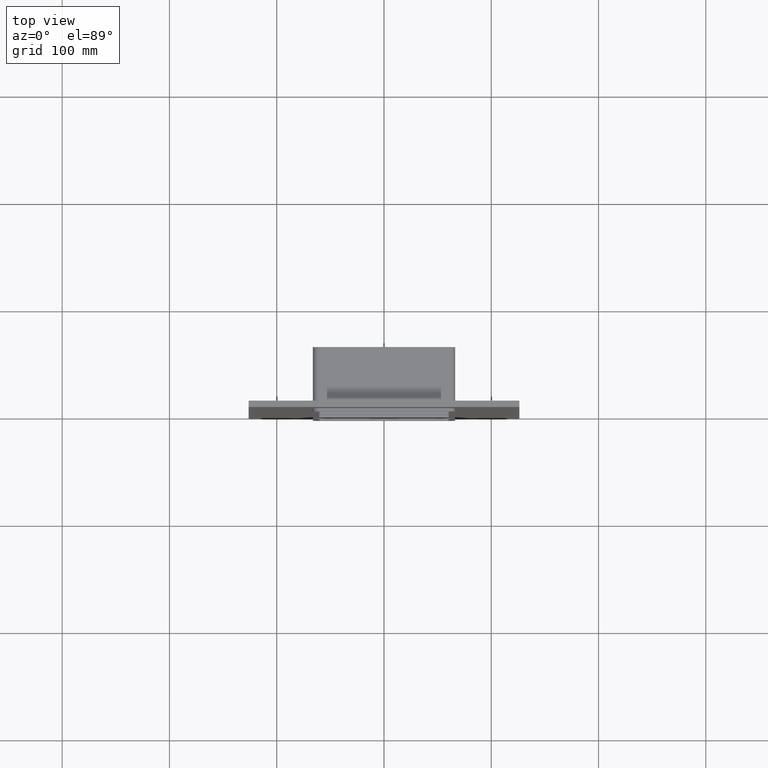
[diagram: clean part render]
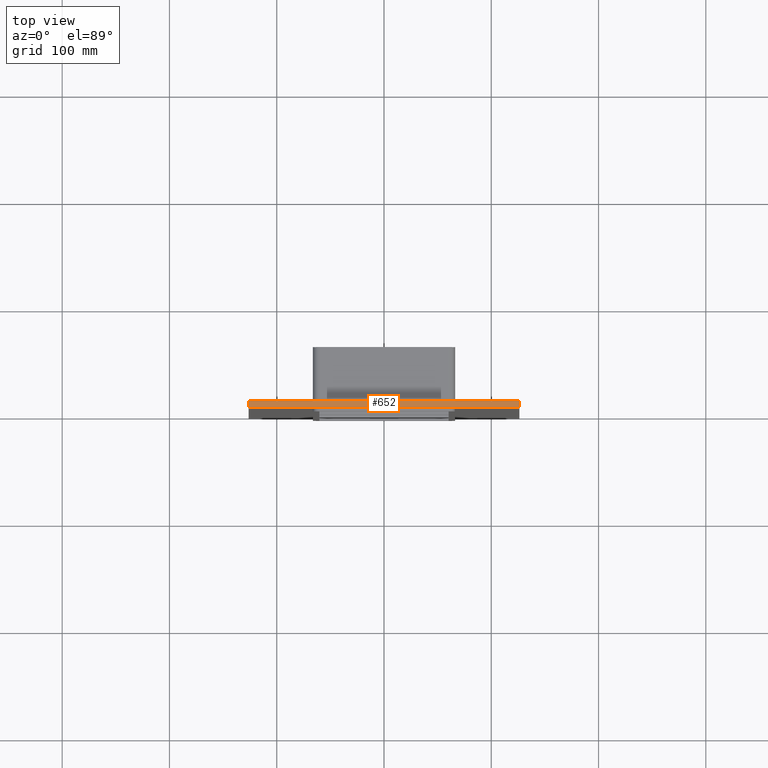
[diagram: same view with one face highlighted and labeled with its STEP entity id]
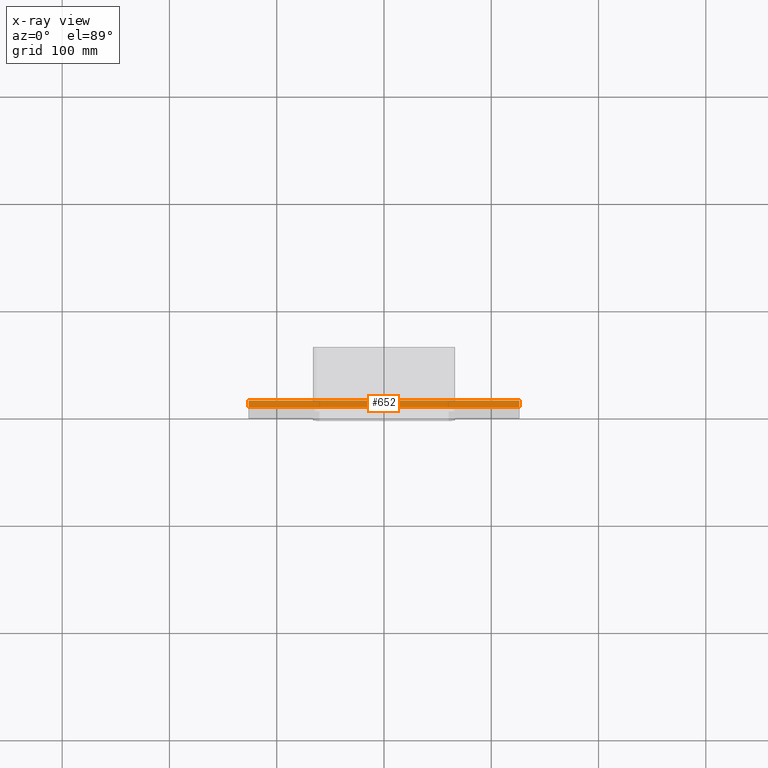
[diagram: x-ray of the same camera — body ghosted, the highlighted face saturated]
A machine part, top view. The second image highlights one B-rep face of the part: STEP entity #652.
The next image is the same camera in x-ray: the body ghosted, the highlighted face saturated — about 0% of this face is hidden behind the body in this view.
In plain terms, the highlighted planar face has unit normal (0, 0, 1).
Its self-contained STEP definition (entity closure, byte-faithful):
#370=CARTESIAN_POINT('',(-126.25,6.000000000000001,315.25000000000006));
#371=VERTEX_POINT('',#370);
#372=CARTESIAN_POINT('',(126.25,6.000000000000001,315.25000000000006));
#373=VERTEX_POINT('',#372);
#374=CARTESIAN_POINT('',(-126.25,6.000000000000001,315.25000000000006));
#375=DIRECTION('',(1.0,0.0,0.0));
#376=VECTOR('',#375,252.5);
#377=LINE('',#374,#376);
#378=EDGE_CURVE('',#371,#373,#377,.T.);
#480=CARTESIAN_POINT('',(-126.25,0.0,315.25000000000006));
#481=VERTEX_POINT('',#480);
#482=CARTESIAN_POINT('',(126.25,0.0,315.25000000000006));
#483=VERTEX_POINT('',#482);
#484=CARTESIAN_POINT('',(-126.25,0.0,315.25000000000006));
#485=DIRECTION('',(1.0,0.0,0.0));
#486=VECTOR('',#485,252.5);
#487=LINE('',#484,#486);
#488=EDGE_CURVE('',#481,#483,#487,.T.);
#591=CARTESIAN_POINT('',(-126.25,0.0,315.25000000000006));
#592=DIRECTION('',(0.0,1.0,0.0));
#593=VECTOR('',#592,6.000000000000001);
#594=LINE('',#591,#593);
#595=EDGE_CURVE('',#481,#371,#594,.T.);
#632=CARTESIAN_POINT('',(126.25,0.0,315.25000000000006));
#633=DIRECTION('',(0.0,1.0,0.0));
#634=VECTOR('',#633,6.000000000000001);
#635=LINE('',#632,#634);
#636=EDGE_CURVE('',#483,#373,#635,.T.);
#641=CARTESIAN_POINT('',(-126.25,0.0,315.25000000000006));
#642=DIRECTION('',(0.0,0.0,1.0));
#643=DIRECTION('',(1.0,0.0,0.0));
#644=AXIS2_PLACEMENT_3D('',#641,#642,#643);
#645=PLANE('',#644);
#646=ORIENTED_EDGE('',*,*,#488,.T.);
#647=ORIENTED_EDGE('',*,*,#636,.T.);
#648=ORIENTED_EDGE('',*,*,#378,.F.);
#649=ORIENTED_EDGE('',*,*,#595,.F.);
#650=EDGE_LOOP('',(#646,#647,#648,#649));
#651=FACE_OUTER_BOUND('',#650,.T.);
#652=ADVANCED_FACE('',(#651),#645,.T.);